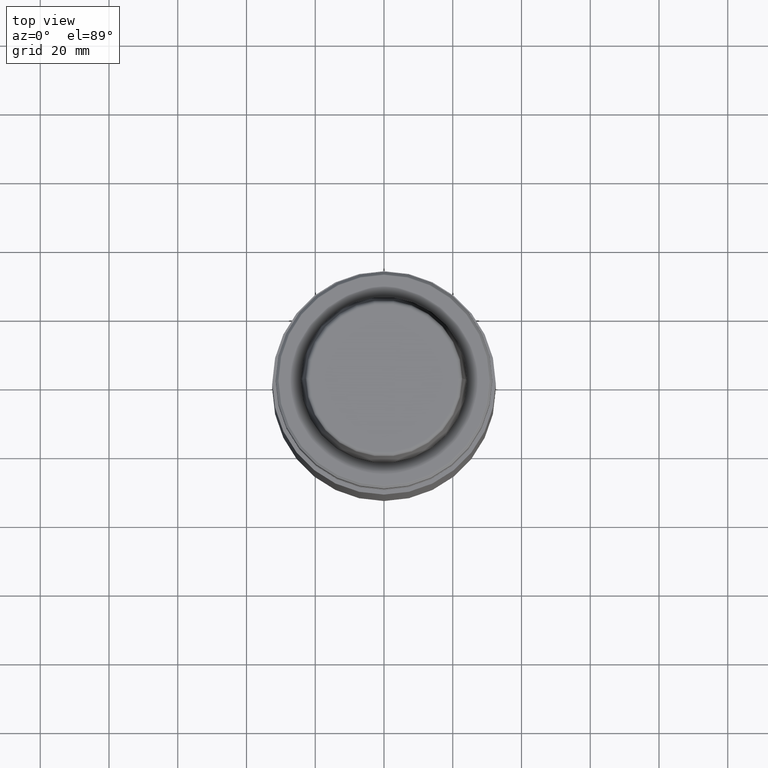
[diagram: clean part render]
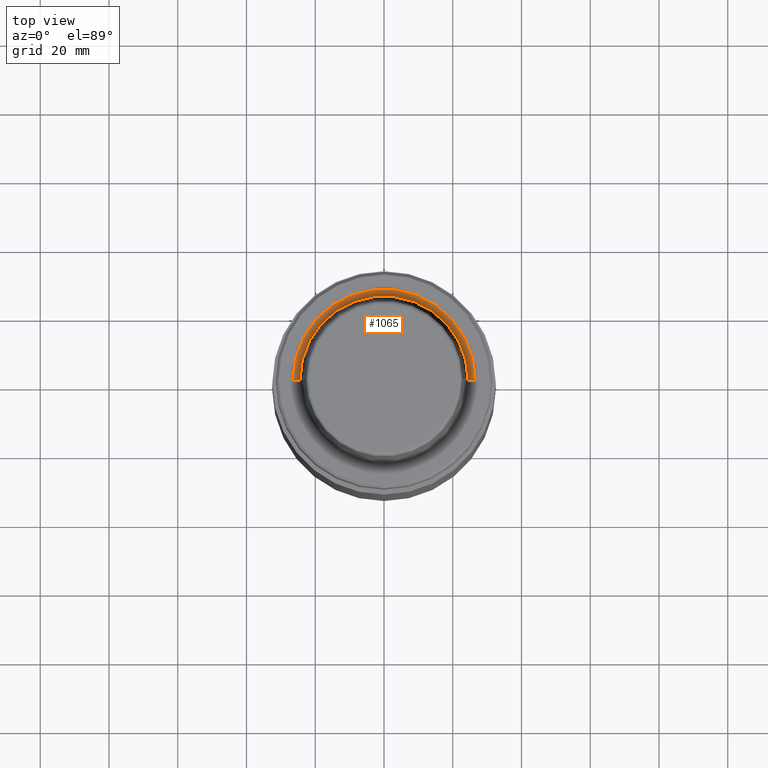
[diagram: same view with one face highlighted and labeled with its STEP entity id]
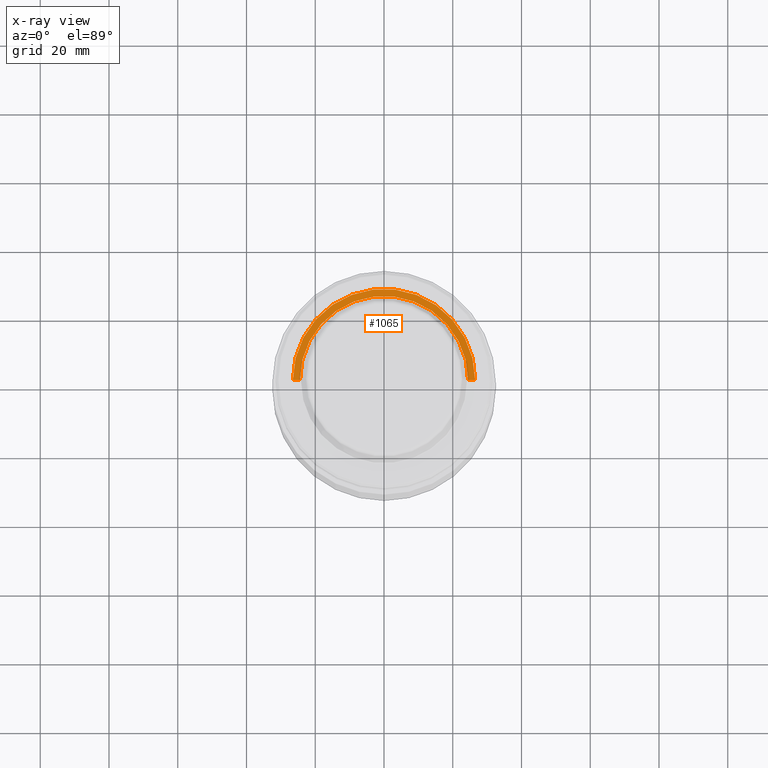
[diagram: x-ray of the same camera — body ghosted, the highlighted face saturated]
A machine part, top view. The second image highlights one B-rep face of the part: STEP entity #1065.
The next image is the same camera in x-ray: the body ghosted, the highlighted face saturated — about 0% of this face is hidden behind the body in this view.
In plain terms, the highlighted conical surface has half-angle 80 deg.
Its self-contained STEP definition (entity closure, byte-faithful):
#5 = ORIENTED_EDGE ( 'NONE', *, *, #941, .T. ) ;
#21 = VERTEX_POINT ( 'NONE', #456 ) ;
#42 = CIRCLE ( 'NONE', #832, 24.47682408883346700 ) ;
#77 = EDGE_CURVE ( 'NONE', #1111, #21, #530, .T. ) ;
#78 = VECTOR ( 'NONE', #1304, 1000.000000000000200 ) ;
#105 = VECTOR ( 'NONE', #1134, 1000.000000000000200 ) ;
#122 = FACE_OUTER_BOUND ( 'NONE', #376, .T. ) ;
#130 = CARTESIAN_POINT ( 'NONE',  ( -26.52499999999999900, 3.248375634738354300E-015, 0.0000000000000000000 ) ) ;
#157 = CONICAL_SURFACE ( 'NONE', #743, 26.52499999999999900, 1.396263401595460500 ) ;
#166 = ORIENTED_EDGE ( 'NONE', *, *, #1325, .T. ) ;
#349 = VERTEX_POINT ( 'NONE', #610 ) ;
#376 = EDGE_LOOP ( 'NONE', ( #846, #591, #166, #5 ) ) ;
#430 = CARTESIAN_POINT ( 'NONE',  ( 0.0000000000000000000, 0.0000000000000000000, -0.3611486743758107700 ) ) ;
#448 = CARTESIAN_POINT ( 'NONE',  ( 0.0000000000000000000, 0.0000000000000000000, 0.0000000000000000000 ) ) ;
#456 = CARTESIAN_POINT ( 'NONE',  ( -26.52499999999999900, 3.248375634738354300E-015, 0.0000000000000000000 ) ) ;
#530 = LINE ( 'NONE', #130, #78 ) ;
#533 = DIRECTION ( 'NONE',  ( 1.000000000000000000, 0.0000000000000000000, 0.0000000000000000000 ) ) ;
#550 = DIRECTION ( 'NONE',  ( 1.000000000000000000, 0.0000000000000000000, 0.0000000000000000000 ) ) ;
#559 = CARTESIAN_POINT ( 'NONE',  ( 0.0000000000000000000, 0.0000000000000000000, 0.0000000000000000000 ) ) ;
#591 = ORIENTED_EDGE ( 'NONE', *, *, #867, .F. ) ;
#610 = CARTESIAN_POINT ( 'NONE',  ( 26.52499999999999900, 0.0000000000000000000, 0.0000000000000000000 ) ) ;
#653 = LINE ( 'NONE', #1140, #105 ) ;
#665 = DIRECTION ( 'NONE',  ( 1.000000000000000000, 0.0000000000000000000, 0.0000000000000000000 ) ) ;
#743 = AXIS2_PLACEMENT_3D ( 'NONE', #559, #1083, #665 ) ;
#832 = AXIS2_PLACEMENT_3D ( 'NONE', #430, #1155, #533 ) ;
#846 = ORIENTED_EDGE ( 'NONE', *, *, #77, .F. ) ;
#867 = EDGE_CURVE ( 'NONE', #1179, #1111, #42, .T. ) ;
#941 = EDGE_CURVE ( 'NONE', #349, #21, #1291, .T. ) ;
#1009 = CARTESIAN_POINT ( 'NONE',  ( 24.47682408883346700, 0.0000000000000000000, -0.3611486743758107700 ) ) ;
#1065 = ADVANCED_FACE ( 'NONE', ( #122 ), #157, .F. ) ;
#1083 = DIRECTION ( 'NONE',  ( -0.0000000000000000000, -0.0000000000000000000, 1.000000000000000000 ) ) ;
#1111 = VERTEX_POINT ( 'NONE', #1302 ) ;
#1134 = DIRECTION ( 'NONE',  ( 0.9848077530122074700, 0.0000000000000000000, 0.1736481776669334700 ) ) ;
#1140 = CARTESIAN_POINT ( 'NONE',  ( 26.52499999999999900, 0.0000000000000000000, 0.0000000000000000000 ) ) ;
#1155 = DIRECTION ( 'NONE',  ( -0.0000000000000000000, -0.0000000000000000000, 1.000000000000000000 ) ) ;
#1168 = DIRECTION ( 'NONE',  ( -0.0000000000000000000, -0.0000000000000000000, 1.000000000000000000 ) ) ;
#1179 = VERTEX_POINT ( 'NONE', #1009 ) ;
#1291 = CIRCLE ( 'NONE', #1314, 26.52499999999999900 ) ;
#1302 = CARTESIAN_POINT ( 'NONE',  ( -24.47682408883346700, 3.122961031053313900E-015, -0.3611486743758107700 ) ) ;
#1304 = DIRECTION ( 'NONE',  ( -0.9848077530122074700, 1.206041662501897100E-016, 0.1736481776669334700 ) ) ;
#1314 = AXIS2_PLACEMENT_3D ( 'NONE', #448, #1168, #550 ) ;
#1325 = EDGE_CURVE ( 'NONE', #1179, #349, #653, .T. ) ;